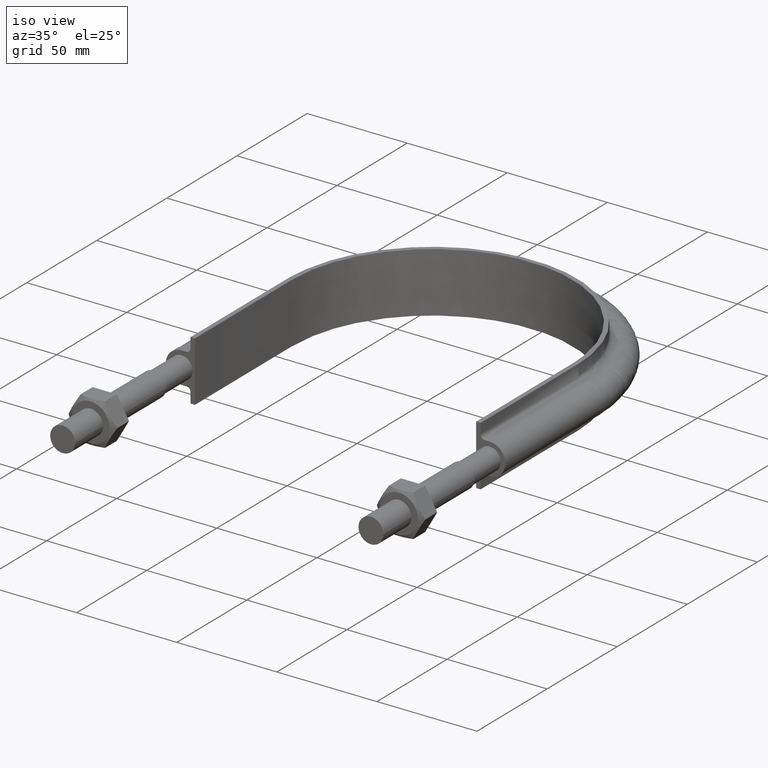
[diagram: clean part render]
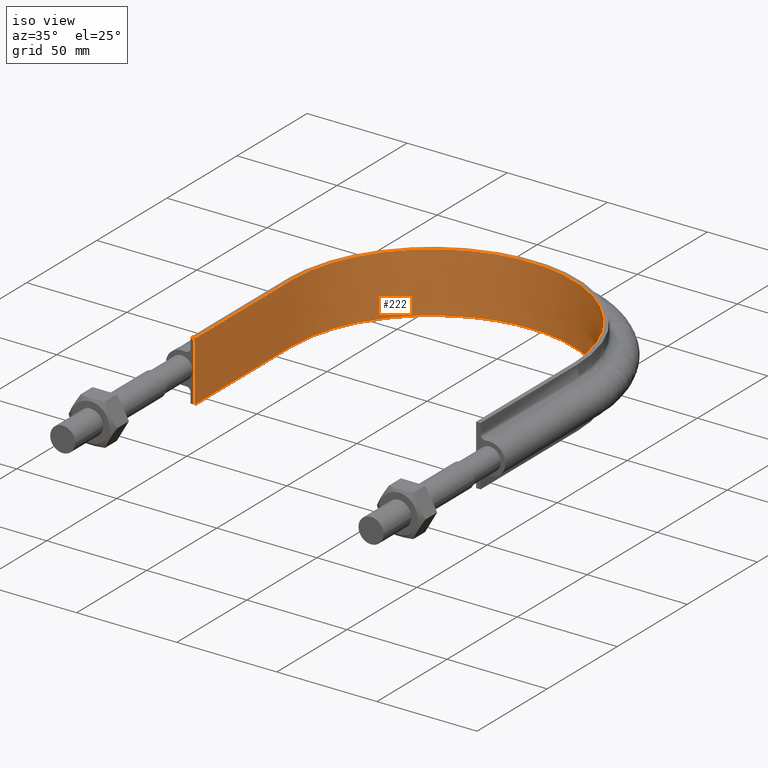
[diagram: same view with one face highlighted and labeled with its STEP entity id]
A machine part, iso view. The second image highlights one B-rep face of the part: STEP entity #222.
In plain terms, the highlighted face is a SurfaceOfExtrusion surface.
Its self-contained STEP definition (entity closure, byte-faithful):
#222 = ADVANCED_FACE( '', ( #268 ), #269, .T. );
#268 = FACE_OUTER_BOUND( '', #370, .T. );
#269 = SURFACE_OF_LINEAR_EXTRUSION( '', #371, #372 );
#370 = EDGE_LOOP( '', ( #1333, #1334, #1335, #1336 ) );
#371 = B_SPLINE_CURVE_WITH_KNOTS( '', 3, ( #1337, #1338, #1339, #1340, #1341, #1342, #1343, #1344, #1345, #1346, #1347, #1348, #1349, #1350, #1351, #1352 ), .UNSPECIFIED., .F., .F., ( 4, 3, 1, 1, 1, 1, 1, 1, 3, 4 ), ( -9.00000000000000, -8.00000000000000, -7.00000000000000, -6.00000000000000, -5.00000000000000, -4.00000000000000, -3.00000000000000, -2.00000000000000, -1.00000000000000, 0.000000000000000 ), .UNSPECIFIED. );
#372 = VECTOR( '', #1353, 1000.00000000000 );
#1333 = ORIENTED_EDGE( '', *, *, #1611, .F. );
#1334 = ORIENTED_EDGE( '', *, *, #1600, .F. );
#1335 = ORIENTED_EDGE( '', *, *, #1604, .T. );
#1336 = ORIENTED_EDGE( '', *, *, #1608, .T. );
#1337 = CARTESIAN_POINT( '', ( -70.2500000000000, 84.7100000000000, -237.081057040700 ) );
#1338 = CARTESIAN_POINT( '', ( -70.2500000000000, 107.726666666667, -237.081057040700 ) );
#1339 = CARTESIAN_POINT( '', ( -70.2500000000000, 130.743333333333, -237.081057040700 ) );
#1340 = CARTESIAN_POINT( '', ( -70.2500000000000, 153.760000000000, -237.081057040700 ) );
#1341 = CARTESIAN_POINT( '', ( -70.2500000000000, 164.249418134732, -237.081057040700 ) );
#1342 = CARTESIAN_POINT( '', ( -65.4537147955432, 185.288971927909, -237.081057040700 ) );
#1343 = CARTESIAN_POINT( '', ( -45.2953760364684, 210.556467088273, -237.081057040700 ) );
#1344 = CARTESIAN_POINT( '', ( -16.1657325420394, 224.587129579273, -237.081057040700 ) );
#1345 = CARTESIAN_POINT( '', ( 16.1657325420395, 224.587129579273, -237.081057040700 ) );
#1346 = CARTESIAN_POINT( '', ( 45.2953760364684, 210.556467088273, -237.081057040700 ) );
#1347 = CARTESIAN_POINT( '', ( 65.4537147955432, 185.288971927909, -237.081057040700 ) );
#1348 = CARTESIAN_POINT( '', ( 70.2500000000000, 164.249418134732, -237.081057040700 ) );
#1349 = CARTESIAN_POINT( '', ( 70.2500000000000, 153.760000000000, -237.081057040700 ) );
#1350 = CARTESIAN_POINT( '', ( 70.2500000000000, 130.743333333333, -237.081057040700 ) );
#1351 = CARTESIAN_POINT( '', ( 70.2500000000000, 107.726666666667, -237.081057040700 ) );
#1352 = CARTESIAN_POINT( '', ( 70.2500000000000, 84.7100000000000, -237.081057040700 ) );
#1353 = DIRECTION( '', ( 0.000000000000000, 0.000000000000000, 1.00000000000000 ) );
#1600 = EDGE_CURVE( '', #1683, #1684, #1685, .T. );
#1604 = EDGE_CURVE( '', #1683, #1691, #1692, .T. );
#1608 = EDGE_CURVE( '', #1691, #1698, #1699, .T. );
#1611 = EDGE_CURVE( '', #1684, #1698, #1703, .T. );
#1683 = VERTEX_POINT( '', #1841 );
#1684 = VERTEX_POINT( '', #1842 );
#1685 = LINE( '', #1843, #1844 );
#1691 = VERTEX_POINT( '', #1882 );
#1692 = B_SPLINE_CURVE_WITH_KNOTS( '', 3, ( #1883, #1884, #1885, #1886, #1887, #1888, #1889, #1890, #1891, #1892, #1893, #1894, #1895, #1896, #1897, #1898 ), .UNSPECIFIED., .F., .F., ( 4, 3, 1, 1, 1, 1, 1, 1, 3, 4 ), ( -9.00000000000000, -8.00000000000000, -7.00000000000000, -6.00000000000000, -5.00000000000000, -4.00000000000000, -3.00000000000000, -2.00000000000000, -1.00000000000000, 0.000000000000000 ), .UNSPECIFIED. );
#1698 = VERTEX_POINT( '', #1930 );
#1699 = LINE( '', #1931, #1932 );
#1703 = B_SPLINE_CURVE_WITH_KNOTS( '', 3, ( #1967, #1968, #1969, #1970, #1971, #1972, #1973, #1974, #1975, #1976, #1977, #1978, #1979, #1980, #1981, #1982 ), .UNSPECIFIED., .F., .F., ( 4, 3, 1, 1, 1, 1, 1, 1, 3, 4 ), ( -9.00000000000000, -8.00000000000000, -7.00000000000000, -6.00000000000000, -5.00000000000000, -4.00000000000000, -3.00000000000000, -2.00000000000000, -1.00000000000000, 0.000000000000000 ), .UNSPECIFIED. );
#1841 = CARTESIAN_POINT( '', ( -70.2500000000000, 84.7100000000000, -15.0000000000000 ) );
#1842 = CARTESIAN_POINT( '', ( -70.2500000000000, 84.7100000000000, 15.0000000000000 ) );
#1843 = CARTESIAN_POINT( '', ( -70.2500000000000, 84.7100000000000, -237.081057040700 ) );
#1844 = VECTOR( '', #2327, 1000.00000000000 );
#1882 = CARTESIAN_POINT( '', ( 70.2500000000000, 84.7100000000000, -15.0000000000000 ) );
#1883 = CARTESIAN_POINT( '', ( -70.2500000000000, 84.7100000000000, -15.0000000000000 ) );
#1884 = CARTESIAN_POINT( '', ( -70.2500000000000, 107.726666666667, -15.0000000000000 ) );
#1885 = CARTESIAN_POINT( '', ( -70.2500000000000, 130.743333333333, -15.0000000000000 ) );
#1886 = CARTESIAN_POINT( '', ( -70.2500000000000, 153.760000000000, -15.0000000000000 ) );
#1887 = CARTESIAN_POINT( '', ( -70.2500000000000, 164.249418134732, -15.0000000000000 ) );
#1888 = CARTESIAN_POINT( '', ( -65.4537147955432, 185.288971927909, -15.0000000000000 ) );
#1889 = CARTESIAN_POINT( '', ( -45.2953760364684, 210.556467088273, -15.0000000000000 ) );
#1890 = CARTESIAN_POINT( '', ( -16.1657325420394, 224.587129579273, -15.0000000000000 ) );
#1891 = CARTESIAN_POINT( '', ( 16.1657325420395, 224.587129579273, -15.0000000000000 ) );
#1892 = CARTESIAN_POINT( '', ( 45.2953760364684, 210.556467088273, -15.0000000000000 ) );
#1893 = CARTESIAN_POINT( '', ( 65.4537147955432, 185.288971927909, -15.0000000000000 ) );
#1894 = CARTESIAN_POINT( '', ( 70.2500000000000, 164.249418134732, -15.0000000000000 ) );
#1895 = CARTESIAN_POINT( '', ( 70.2500000000000, 153.760000000000, -15.0000000000000 ) );
#1896 = CARTESIAN_POINT( '', ( 70.2500000000000, 130.743333333333, -15.0000000000000 ) );
#1897 = CARTESIAN_POINT( '', ( 70.2500000000000, 107.726666666667, -15.0000000000000 ) );
#1898 = CARTESIAN_POINT( '', ( 70.2500000000000, 84.7100000000000, -15.0000000000000 ) );
#1930 = CARTESIAN_POINT( '', ( 70.2500000000000, 84.7100000000000, 15.0000000000000 ) );
#1931 = CARTESIAN_POINT( '', ( 70.2500000000000, 84.7100000000000, -237.081057040700 ) );
#1932 = VECTOR( '', #2331, 1000.00000000000 );
#1967 = CARTESIAN_POINT( '', ( -70.2500000000000, 84.7100000000000, 15.0000000000000 ) );
#1968 = CARTESIAN_POINT( '', ( -70.2500000000000, 107.726666666667, 15.0000000000000 ) );
#1969 = CARTESIAN_POINT( '', ( -70.2500000000000, 130.743333333333, 15.0000000000000 ) );
#1970 = CARTESIAN_POINT( '', ( -70.2500000000000, 153.760000000000, 15.0000000000000 ) );
#1971 = CARTESIAN_POINT( '', ( -70.2500000000000, 164.249418134732, 15.0000000000000 ) );
#1972 = CARTESIAN_POINT( '', ( -65.4537147955432, 185.288971927909, 15.0000000000000 ) );
#1973 = CARTESIAN_POINT( '', ( -45.2953760364684, 210.556467088273, 15.0000000000000 ) );
#1974 = CARTESIAN_POINT( '', ( -16.1657325420394, 224.587129579273, 15.0000000000000 ) );
#1975 = CARTESIAN_POINT( '', ( 16.1657325420395, 224.587129579273, 15.0000000000000 ) );
#1976 = CARTESIAN_POINT( '', ( 45.2953760364684, 210.556467088273, 15.0000000000000 ) );
#1977 = CARTESIAN_POINT( '', ( 65.4537147955432, 185.288971927909, 15.0000000000000 ) );
#1978 = CARTESIAN_POINT( '', ( 70.2500000000000, 164.249418134732, 15.0000000000000 ) );
#1979 = CARTESIAN_POINT( '', ( 70.2500000000000, 153.760000000000, 15.0000000000000 ) );
#1980 = CARTESIAN_POINT( '', ( 70.2500000000000, 130.743333333333, 15.0000000000000 ) );
#1981 = CARTESIAN_POINT( '', ( 70.2500000000000, 107.726666666667, 15.0000000000000 ) );
#1982 = CARTESIAN_POINT( '', ( 70.2500000000000, 84.7100000000000, 15.0000000000000 ) );
#2327 = DIRECTION( '', ( 0.000000000000000, 0.000000000000000, 1.00000000000000 ) );
#2331 = DIRECTION( '', ( 0.000000000000000, 0.000000000000000, 1.00000000000000 ) );